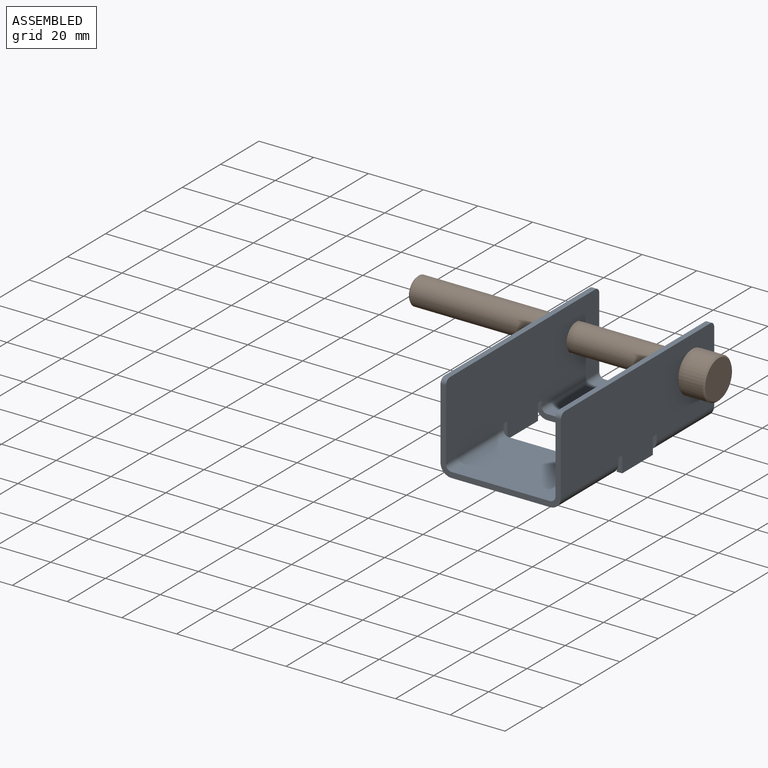
[diagram: assembled view]
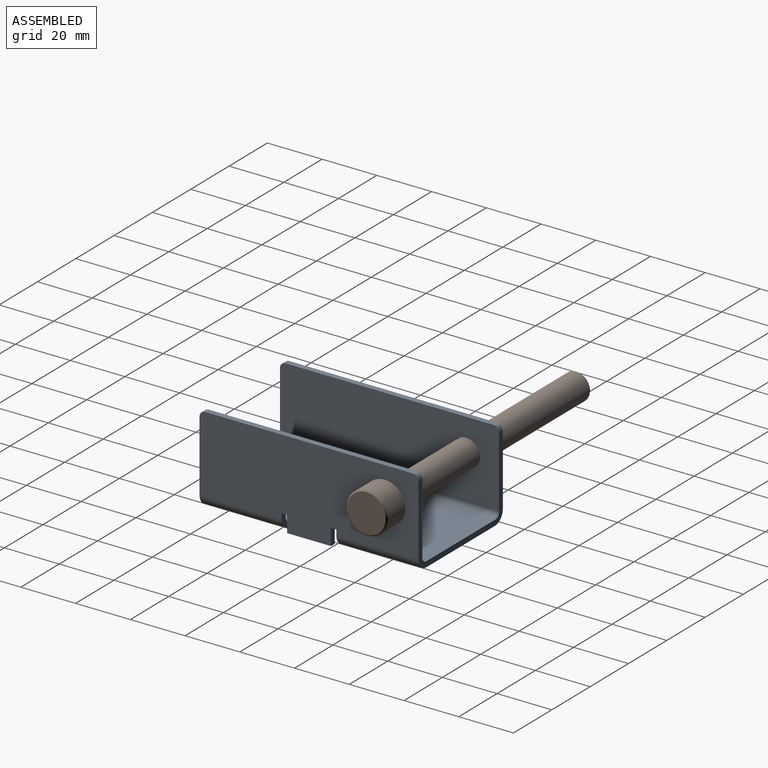
[diagram: assembled view, second angle]
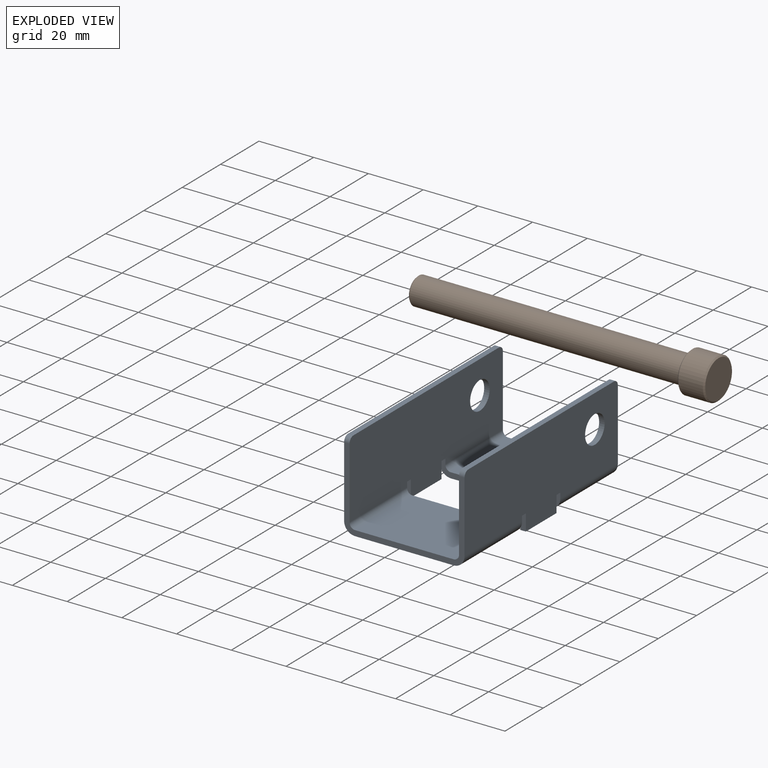
[diagram: exploded view]
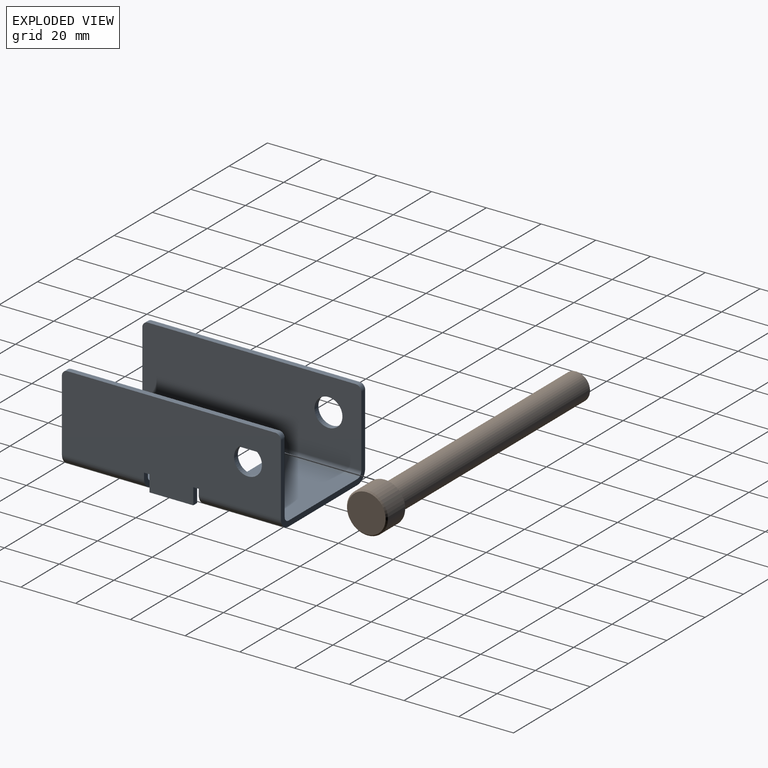
[diagram: exploded view, second angle]
ASSEMBLY  parts=2 mates=2
PART A: 54 faces, bbox 44x80x32 mm
  f0: plane 2x2mm, normal (0,0,-1), area 4mm2, adj f1,f10,f11,f12
  f1: plane 6x2mm, normal (0,-1,0), area 12mm2, adj f0,f2,f11,f12
  f2: plane 16x2mm, normal (0,0,-1), area 32mm2, adj f1,f3,f11,f12
  f3: plane 6x2mm, normal (0,1,0), area 12mm2, adj f2,f4,f11,f12
  f4: plane 2x2mm, normal (0,0,-1), area 4mm2, adj f3,f5,f11,f12
  f5: plane 2x2mm, normal (0,-1,0), area 4mm2, adj f4,f11,f12,f47
  f6: plane 26x2mm, normal (0,1,0), area 52mm2, adj f11,f12,f13,f46
  f7: plane 76x2mm, normal (0,0,1), area 152mm2, adj f11,f12,f13,f14
  f8: plane 26x2mm, normal (0,-1,0), area 52mm2, adj f11,f12,f14,f51
  f9: cylinder r=5.1mm len=10.2mm, axis (1,0,0), area 64.1mm2, adj f11,f12
  f10: plane 2x2mm, normal (0,1,0), area 4mm2, adj f0,f11,f12,f50
  f11: plane 80x32mm, normal (1,0,0), area 2212.6mm2, adj f0,f1,f2,f3,f4,f5,f6,f7
  f12: plane 80x32mm, normal (-1,0,0), area 2212.6mm2, adj f0,f1,f2,f3,f4,f5,f6,f7
  f13: cylinder r=2mm len=2mm, axis (1,0,0), area 6.3mm2, adj f6,f7,f11,f12
  f14: cylinder r=2mm len=2mm, axis (1,0,0), area 6.3mm2, adj f7,f8,f11,f12
  f15: plane 36x2mm, normal (0,-1,0), area 72mm2, adj f17,f18,f43,f51
  f16: plane 36x2mm, normal (0,1,0), area 72mm2, adj f17,f18,f42,f50
  f17: plane 36x30mm, normal (0,0,1), area 1080mm2, adj f15,f16,f45,f53
  f18: plane 36x30mm, normal (0,0,-1), area 1080mm2, adj f15,f16,f44,f52
  f19: plane 36x2mm, normal (0,1,0), area 72mm2, adj f21,f22,f38,f46
  f20: plane 36x2mm, normal (0,-1,0), area 72mm2, adj f21,f22,f39,f47
  f21: plane 36x30mm, normal (0,0,1), area 1080mm2, adj f19,f20,f41,f49
  f22: plane 36x30mm, normal (0,0,-1), area 1080mm2, adj f19,f20,f40,f48
  f23: plane 2x2mm, normal (0,0,-1), area 4mm2, adj f24,f33,f34,f35
  f24: plane 6x2mm, normal (0,1,0), area 12mm2, adj f23,f25,f34,f35
  f25: plane 16x2mm, normal (0,0,-1), area 32mm2, adj f24,f26,f34,f35
  f26: plane 6x2mm, normal (0,-1,0), area 12mm2, adj f25,f27,f34,f35
  f27: plane 2x2mm, normal (0,0,-1), area 4mm2, adj f26,f28,f34,f35
  f28: plane 2x2mm, normal (0,1,0), area 4mm2, adj f27,f34,f35,f42
  f29: plane 26x2mm, normal (0,-1,0), area 52mm2, adj f34,f35,f36,f43
  f30: plane 76x2mm, normal (0,0,1), area 152mm2, adj f34,f35,f36,f37
  f31: plane 26x2mm, normal (0,1,0), area 52mm2, adj f34,f35,f37,f38
  f32: cylinder r=5.1mm len=10.2mm, axis (-1,0,0), area 64.1mm2, adj f34,f35
  f33: plane 2x2mm, normal (0,-1,0), area 4mm2, adj f23,f34,f35,f39
  f34: plane 80x32mm, normal (-1,0,0), area 2212.6mm2, adj f23,f24,f25,f26,f27,f28,f29,f30
  f35: plane 80x32mm, normal (1,0,0), area 2212.6mm2, adj f23,f24,f25,f26,f27,f28,f29,f30
  f36: cylinder r=2mm len=2mm, axis (-1,0,0), area 6.3mm2, adj f29,f30,f34,f35
  f37: cylinder r=2mm len=2mm, axis (-1,0,0), area 6.3mm2, adj f30,f31,f34,f35
  f38: plane 4x4mm, normal (0,1,0), area 9.4mm2, adj f19,f31,f40,f41
  f39: plane 4x4mm, normal (0,-1,0), area 9.4mm2, adj f20,f33,f40,f41
  f40: cylinder r=4mm len=30mm, axis (0,1,0), area 188.5mm2, adj f22,f35,f38,f39
  f41: cylinder r=2mm len=30mm, axis (0,1,0), area 94.2mm2, adj f21,f34,f38,f39
  f42: plane 4x4mm, normal (0,1,0), area 9.4mm2, adj f16,f28,f44,f45
  f43: plane 4x4mm, normal (0,-1,0), area 9.4mm2, adj f15,f29,f44,f45
  f44: cylinder r=4mm len=30mm, axis (0,1,0), area 188.5mm2, adj f18,f35,f42,f43
  f45: cylinder r=2mm len=30mm, axis (0,1,0), area 94.2mm2, adj f17,f34,f42,f43
  f46: plane 4x4mm, normal (0,1,0), area 9.4mm2, adj f6,f19,f48,f49
  f47: plane 4x4mm, normal (0,-1,0), area 9.4mm2, adj f5,f20,f48,f49
  f48: cylinder r=4mm len=30mm, axis (0,1,0), area 188.5mm2, adj f12,f22,f46,f47
  f49: cylinder r=2mm len=30mm, axis (0,1,0), area 94.2mm2, adj f11,f21,f46,f47
  f50: plane 4x4mm, normal (0,1,0), area 9.4mm2, adj f10,f16,f52,f53
  f51: plane 4x4mm, normal (0,-1,0), area 9.4mm2, adj f8,f15,f52,f53
  f52: cylinder r=4mm len=30mm, axis (0,1,0), area 188.5mm2, adj f12,f18,f50,f51
  f53: cylinder r=2mm len=30mm, axis (0,1,0), area 94.2mm2, adj f11,f17,f50,f51
PART B: 8 faces, bbox 110x15x15 mm
  f0: cylinder r=5mm len=99.5mm, axis (1,0,0), area 3125.9mm2, adj f4,f6
  f1: plane 9x9mm, normal (-1,0,0), area 63.6mm2, adj f6
  f2: cylinder r=7.5mm len=15mm, axis (-1,0,0), area 424.1mm2, adj f5,f7
  f3: plane 14x14mm, normal (1,0,0), area 153.9mm2, adj f7
  f4: plane 14x14mm, normal (-1,0,0), area 75.4mm2, adj f0,f5
  f5: cone r=7.5mm half-angle=45deg, axis (1,0,0), area 32.2mm2, adj f2,f4
  f6: cone r=5mm half-angle=45deg, axis (1,0,0), area 21.1mm2, adj f0,f1
  f7: cone r=7mm half-angle=45deg, axis (-1,0,0), area 32.2mm2, adj f2,f3
PLACE A t=(-15.35,-66.06,18.5)mm
PLACE B t=(6.65,-38.06,36.5)mm
MATE cylindrical A.f9 <-> B.f0  axis (-1,0,0) through (5.65,-38.06,36.5)mm
MATE planar B.f2 <-> A.f35  axis (-1,0,0) through (6.65,-38.06,36.5)mm
